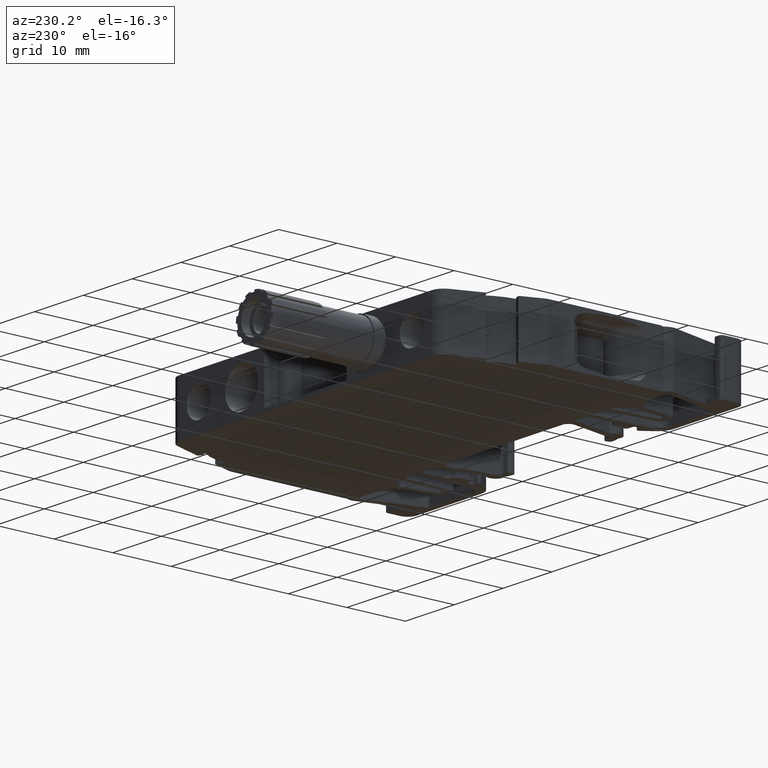
[diagram: clean part render]
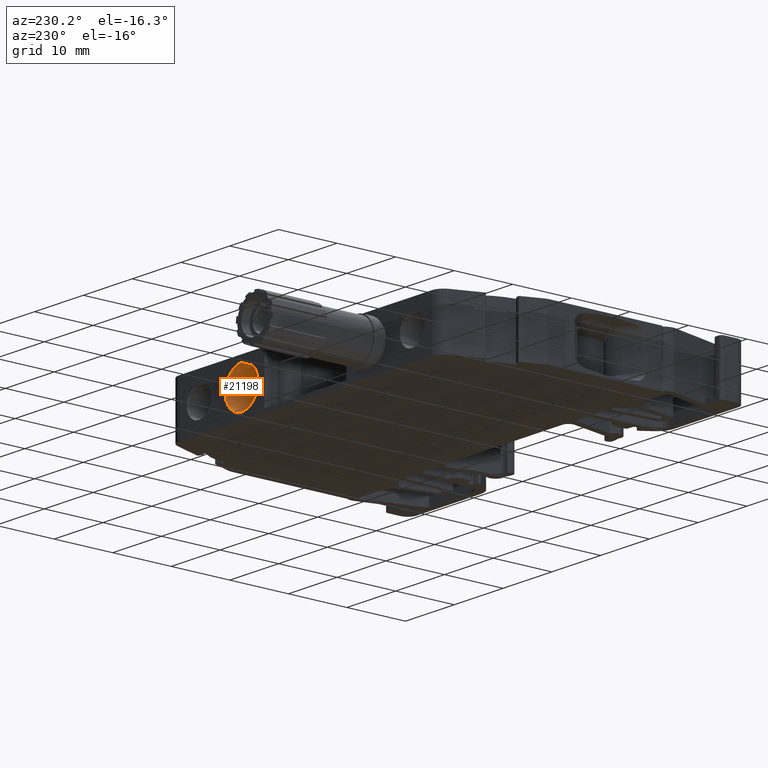
[diagram: same view with one face highlighted and labeled with its STEP entity id]
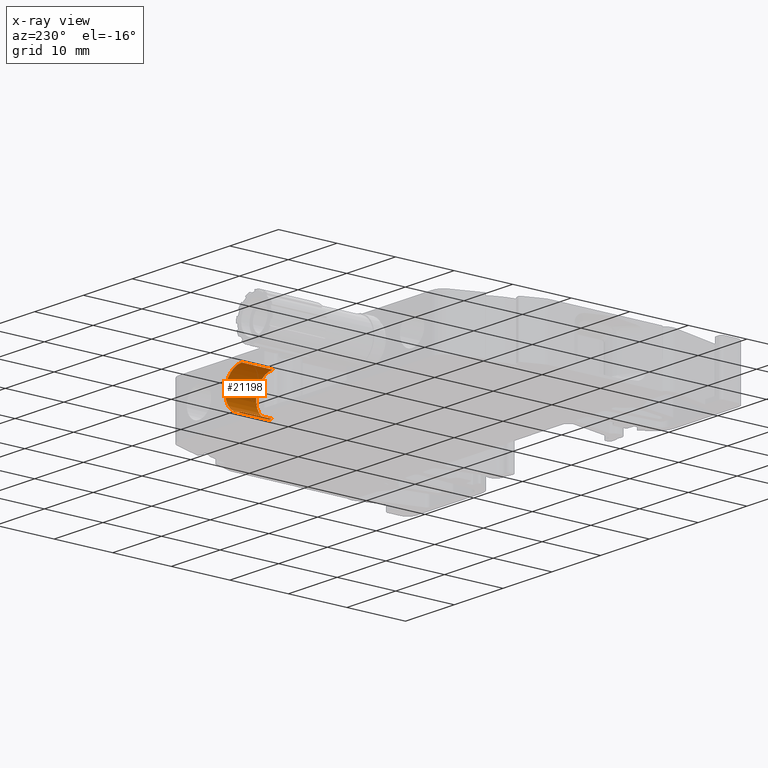
[diagram: x-ray of the same camera — body ghosted, the highlighted face saturated]
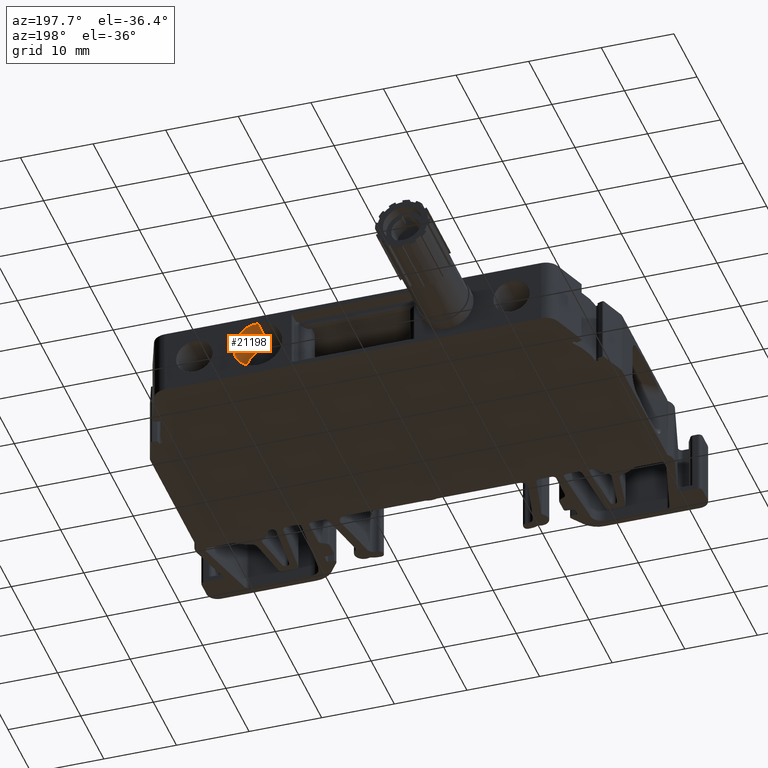
[diagram: same view with one face highlighted and labeled with its STEP entity id]
A machine part, auxiliary view. The second image highlights one B-rep face of the part: STEP entity #21198.
The next image is the same camera in x-ray: the body ghosted, the highlighted face saturated — about 0% of this face is hidden behind the body in this view.
A second angle (auxiliary view) of the same face is appended — the face is thin or edge-on in the first view.
In plain terms, the highlighted cylindrical surface (edge-blend (fillet) strip) has radius 3.375 mm, axis along (0, 1, 0).
Its self-contained STEP definition (entity closure, byte-faithful):
#1828 = AXIS2_PLACEMENT_3D ( 'NONE', #14775, #14770, #14753 ) ;
#1887 = CIRCLE ( 'NONE', #1828, 3.375000000000003100 ) ;
#2017 = CIRCLE ( 'NONE', #2060, 3.375000000000003100 ) ;
#2060 = AXIS2_PLACEMENT_3D ( 'NONE', #14823, #14801, #14830 ) ;
#2135 = VECTOR ( 'NONE', #15332, 1000.000000000000000 ) ;
#2159 = VECTOR ( 'NONE', #15360, 1000.000000000000000 ) ;
#5385 = EDGE_LOOP ( 'NONE', ( #8056, #8058, #8038, #8102 ) ) ;
#5869 = AXIS2_PLACEMENT_3D ( 'NONE', #10890, #10897, #10874 ) ;
#7800 = EDGE_CURVE ( 'NONE', #9536, #9465, #1887, .T. ) ;
#7816 = EDGE_CURVE ( 'NONE', #9522, #9549, #2017, .T. ) ;
#7917 = EDGE_CURVE ( 'NONE', #9536, #9549, #15255, .T. ) ;
#7930 = EDGE_CURVE ( 'NONE', #9465, #9522, #15386, .T. ) ;
#8038 = ORIENTED_EDGE ( 'NONE', *, *, #7917, .T. ) ;
#8056 = ORIENTED_EDGE ( 'NONE', *, *, #7930, .F. ) ;
#8058 = ORIENTED_EDGE ( 'NONE', *, *, #7800, .F. ) ;
#8102 = ORIENTED_EDGE ( 'NONE', *, *, #7816, .F. ) ;
#9465 = VERTEX_POINT ( 'NONE', #14349 ) ;
#9522 = VERTEX_POINT ( 'NONE', #14494 ) ;
#9536 = VERTEX_POINT ( 'NONE', #14489 ) ;
#9549 = VERTEX_POINT ( 'NONE', #14512 ) ;
#10838 = FACE_OUTER_BOUND ( 'NONE', #5385, .T. ) ;
#10871 = CYLINDRICAL_SURFACE ( 'NONE', #5869, 3.375000000000003100 ) ;
#10874 = DIRECTION ( 'NONE',  ( 0.0000000000000000000, 0.0000000000000000000, 1.000000000000000000 ) ) ;
#10890 = CARTESIAN_POINT ( 'NONE',  ( 485.3252094327940000, 143.8396878145460100, 31.39999999999999900 ) ) ;
#10897 = DIRECTION ( 'NONE',  ( 0.0000000000000000000, 1.000000000000000000, 0.0000000000000000000 ) ) ;
#14349 = CARTESIAN_POINT ( 'NONE',  ( 485.3252094327940000, 138.2520663453292100, 28.02499999999999900 ) ) ;
#14489 = CARTESIAN_POINT ( 'NONE',  ( 485.3252094327940000, 138.2520663453292100, 34.77499999999999900 ) ) ;
#14494 = CARTESIAN_POINT ( 'NONE',  ( 485.3252094327940000, 143.5396878145460000, 28.02499999999999900 ) ) ;
#14512 = CARTESIAN_POINT ( 'NONE',  ( 485.3252094327940000, 143.5396878145460000, 34.77499999999999900 ) ) ;
#14753 = DIRECTION ( 'NONE',  ( 0.0000000000000000000, 0.0000000000000000000, 1.000000000000000000 ) ) ;
#14770 = DIRECTION ( 'NONE',  ( 0.0000000000000000000, 1.000000000000000000, 0.0000000000000000000 ) ) ;
#14775 = CARTESIAN_POINT ( 'NONE',  ( 485.3252094327940000, 138.2520663453292100, 31.39999999999999900 ) ) ;
#14801 = DIRECTION ( 'NONE',  ( -0.0000000000000000000, -1.000000000000000000, -0.0000000000000000000 ) ) ;
#14823 = CARTESIAN_POINT ( 'NONE',  ( 485.3252094327940000, 143.5396878145460000, 31.39999999999999900 ) ) ;
#14830 = DIRECTION ( 'NONE',  ( 0.0000000000000000000, 0.0000000000000000000, 1.000000000000000000 ) ) ;
#15255 = LINE ( 'NONE', #15291, #2135 ) ;
#15291 = CARTESIAN_POINT ( 'NONE',  ( 485.3252094327940000, 143.8396878145460100, 34.77499999999999900 ) ) ;
#15332 = DIRECTION ( 'NONE',  ( 0.0000000000000000000, 1.000000000000000000, 0.0000000000000000000 ) ) ;
#15347 = CARTESIAN_POINT ( 'NONE',  ( 485.3252094327940000, 143.8396878145460100, 28.02499999999999900 ) ) ;
#15360 = DIRECTION ( 'NONE',  ( 0.0000000000000000000, 1.000000000000000000, 0.0000000000000000000 ) ) ;
#15386 = LINE ( 'NONE', #15347, #2159 ) ;
#21198 = ADVANCED_FACE ( 'NONE', ( #10838 ), #10871, .F. ) ;